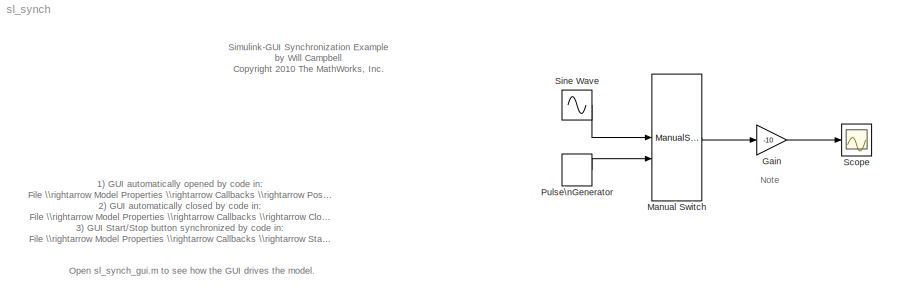
MODEL sl_synch
KIND model
CONFIG PostLoadFcn = % Load the GUI\nh_synch_gui = sl_synch_gui;\n\n% Adjust its position\nset(h_synch_gui,'Position',[74.4 28 63 18.08])
CONFIG StartFcn = % The user may have closed the GUI\ntry\n\n% Get the string of the startstop pushbutton.\nmystring = get(findobj(h_synch_gui,'Tag','pushbutton_startstop'),'String'); \n\n% See if the string is \"Start Simulation.\"\n% If it is, that implies that the start wasn't driven by the GUI.\n% Thus we need to update the GUI by making a callback to the startstop function.\nif strcmp(mystring,'Start Simulatio...<+103ch>
CONFIG StopFcn = % The user may have closed the GUI\ntry\n\n% Get the string of the startstop pushbutton.\nmystring = get(findobj(h_synch_gui,'Tag','pushbutton_startstop'),'String'); \n\n% See if the string is \"Stop Simulation.\"\n% If it is, that implies that the stop wasn't driven by the GUI.\n% Thus we need to update the GUI by making a callback to the startstop function.\nif strcmp(mystring,'Stop Simulation')...<+100ch>
BLOCK [Gain] Gain
  Gain = -10
  OutDataTypeStr = Inherit: Inherit via internal rule
  ParamDataTypeStr = Inherit: Inherit via internal rule
  SID = 11
  SaturateOnIntegerOverflow = off
BLOCK [ManualSwitch] Manual Switch
  SID = 16
BLOCK [DiscretePulseGenerator] Pulse\nGenerator
  Period = 2.5
  PhaseDelay = 3
  Ports = [0, 1]
  PulseType = Time based
  PulseWidth = 25
  SID = 2
BLOCK [Scope] Scope
  DataFormat = StructureWithTime
  Floating = off
  NumInputPorts = 1
  Ports = [1]
  SID = 4
  SampleTime = 0
  ShowLegends = off
  TimeRange = 10
  YMax = 10
  YMin = -10
BLOCK [Sin] Sine Wave
  Ports = [0, 1]
  SID = 1
  SampleTime = 0
ANNOTATION (root): 1) GUI automatically opened by code in:\n File \\rightarrow Model Properties \\rightarrow Callbacks \\rightarrow PostLoadFcn\n2) GUI automatically closed by code in:\n File \\rightarrow Model Properties \\rightarrow Callbacks \\rightarrow CloseFcn\n3) GUI Start/Stop button synchronized by code in:\n File \\rightarrow Model Properties \\rightarrow Callbacks \\rightarrow StartFcn\n File \\rightarrow...<+200ch>
ANNOTATION (root): Note
ANNOTATION (root): Open sl_synch_gui.m to see how the GUI drives the model.
ANNOTATION (root): Simulink-GUI Synchronization Example\nby Will Campbell\nCopyright 2010 The MathWorks, Inc.
LINE Gain:1 -> Scope:1
LINE Manual Switch:1 -> Gain:1
LINE Pulse\nGenerator:1 -> Manual Switch:2
LINE Sine Wave:1 -> Manual Switch:1
